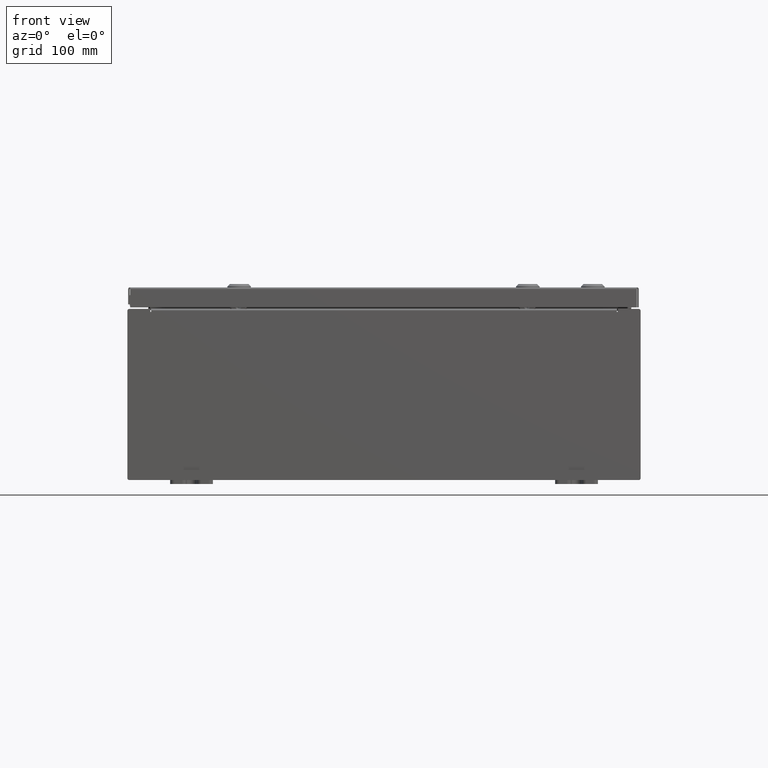
[diagram: clean part render]
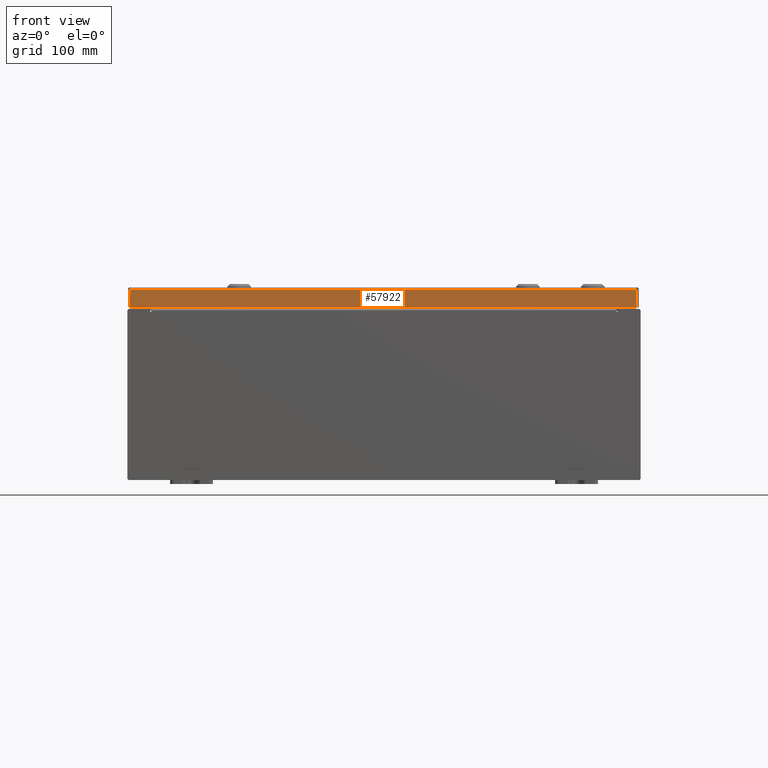
[diagram: same view with one face highlighted and labeled with its STEP entity id]
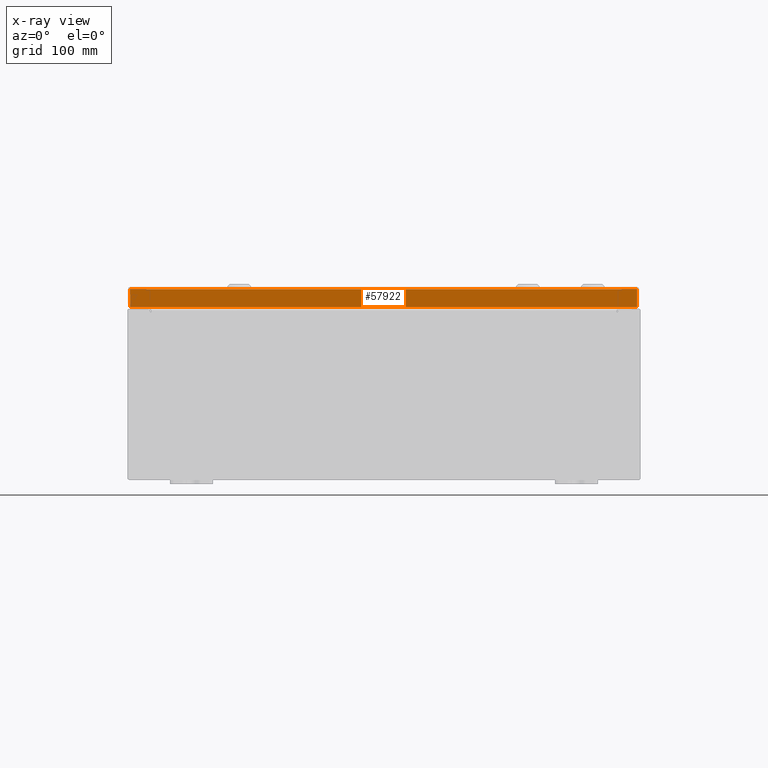
[diagram: x-ray of the same camera — body ghosted, the highlighted face saturated]
A machine part, front view. The second image highlights one B-rep face of the part: STEP entity #57922.
The next image is the same camera in x-ray: the body ghosted, the highlighted face saturated — about 0% of this face is hidden behind the body in this view.
In plain terms, the highlighted planar face has unit normal (-0, 1, -0).
Its self-contained STEP definition (entity closure, byte-faithful):
#3984 = VECTOR ( 'NONE', #13620, 39.37007874015748100 ) ;
#7482 = PLANE ( 'NONE',  #49695 ) ;
#8261 = CARTESIAN_POINT ( 'NONE',  ( 11.84865786437623900, -9.937500000000001800, -0.08769999999999877900 ) ) ;
#8603 = LINE ( 'NONE', #56472, #21663 ) ;
#11230 = VERTEX_POINT ( 'NONE', #17624 ) ;
#13620 = DIRECTION ( 'NONE',  ( -1.000000000000000000, -9.153836209136800800E-017, 1.258652478756310100E-016 ) ) ;
#15473 = ORIENTED_EDGE ( 'NONE', *, *, #26352, .T. ) ;
#17333 = CARTESIAN_POINT ( 'NONE',  ( 9.096624732829760300E-016, -9.937500000000001800, 5.059265965747368200E-014 ) ) ;
#17624 = CARTESIAN_POINT ( 'NONE',  ( -11.84865786437626800, -9.937500000000005300, -0.9376999999999967600 ) ) ;
#18756 = ORIENTED_EDGE ( 'NONE', *, *, #38337, .F. ) ;
#19906 = DIRECTION ( 'NONE',  ( -0.0000000000000000000, -5.064839849203732200E-015, -1.000000000000000000 ) ) ;
#19957 = CARTESIAN_POINT ( 'NONE',  ( 11.84865786437626900, -9.937500000000005300, -0.9376999999999997600 ) ) ;
#19972 = VERTEX_POINT ( 'NONE', #52679 ) ;
#21663 = VECTOR ( 'NONE', #22263, 39.37007874015748100 ) ;
#22231 = DIRECTION ( 'NONE',  ( 0.0000000000000000000, -5.064839849203732200E-015, -1.000000000000000000 ) ) ;
#22263 = DIRECTION ( 'NONE',  ( 1.000000000000000000, 9.153836209136819300E-017, -9.153836209136798400E-017 ) ) ;
#22267 = DIRECTION ( 'NONE',  ( -9.153836209136862500E-017, 1.000000000000000000, -5.064839849203732200E-015 ) ) ;
#22722 = VERTEX_POINT ( 'NONE', #19957 ) ;
#23885 = EDGE_CURVE ( 'NONE', #22722, #11230, #40039, .T. ) ;
#24565 = LINE ( 'NONE', #51533, #26094 ) ;
#26094 = VECTOR ( 'NONE', #22231, 39.37007874015748100 ) ;
#26352 = EDGE_CURVE ( 'NONE', #19972, #11230, #24565, .T. ) ;
#29554 = CARTESIAN_POINT ( 'NONE',  ( 11.84865786437626900, -9.937500000000001800, -0.07469999999999962800 ) ) ;
#34450 = FACE_OUTER_BOUND ( 'NONE', #52152, .T. ) ;
#34854 = VECTOR ( 'NONE', #19906, 39.37007874015748100 ) ;
#38337 = EDGE_CURVE ( 'NONE', #19972, #44600, #8603, .T. ) ;
#40039 = LINE ( 'NONE', #47856, #3984 ) ;
#40655 = ORIENTED_EDGE ( 'NONE', *, *, #48314, .F. ) ;
#44600 = VERTEX_POINT ( 'NONE', #8261 ) ;
#47856 = CARTESIAN_POINT ( 'NONE',  ( 11.93750000000000000, -9.937500000000005300, -0.9376999999999997600 ) ) ;
#48314 = EDGE_CURVE ( 'NONE', #44600, #22722, #62458, .T. ) ;
#49695 = AXIS2_PLACEMENT_3D ( 'NONE', #17333, #22267, #56478 ) ;
#50758 = ORIENTED_EDGE ( 'NONE', *, *, #23885, .F. ) ;
#51533 = CARTESIAN_POINT ( 'NONE',  ( -11.84865786437626600, -9.937500000000001800, 5.059265965747368800E-014 ) ) ;
#52152 = EDGE_LOOP ( 'NONE', ( #18756, #15473, #50758, #40655 ) ) ;
#52679 = CARTESIAN_POINT ( 'NONE',  ( -11.84865786437626800, -9.937500000000001800, -0.08769999999999769600 ) ) ;
#56472 = CARTESIAN_POINT ( 'NONE',  ( 11.93750000000000000, -9.937500000000001800, -0.08769999999999987500 ) ) ;
#56478 = DIRECTION ( 'NONE',  ( 0.0000000000000000000, 5.064839849203732200E-015, 1.000000000000000000 ) ) ;
#57922 = ADVANCED_FACE ( 'NONE', ( #34450 ), #7482, .F. ) ;
#62458 = LINE ( 'NONE', #29554, #34854 ) ;